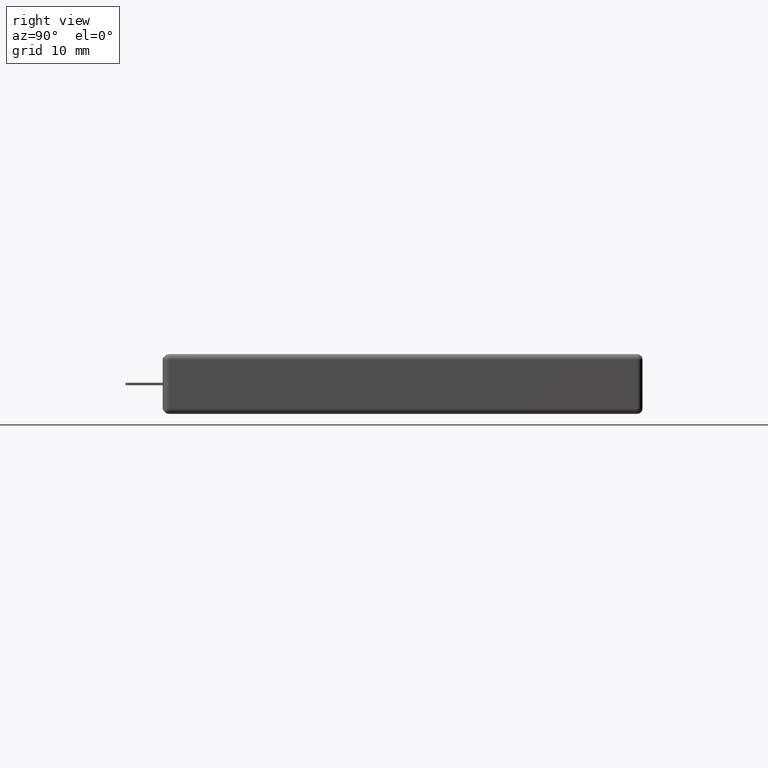
[diagram: clean part render]
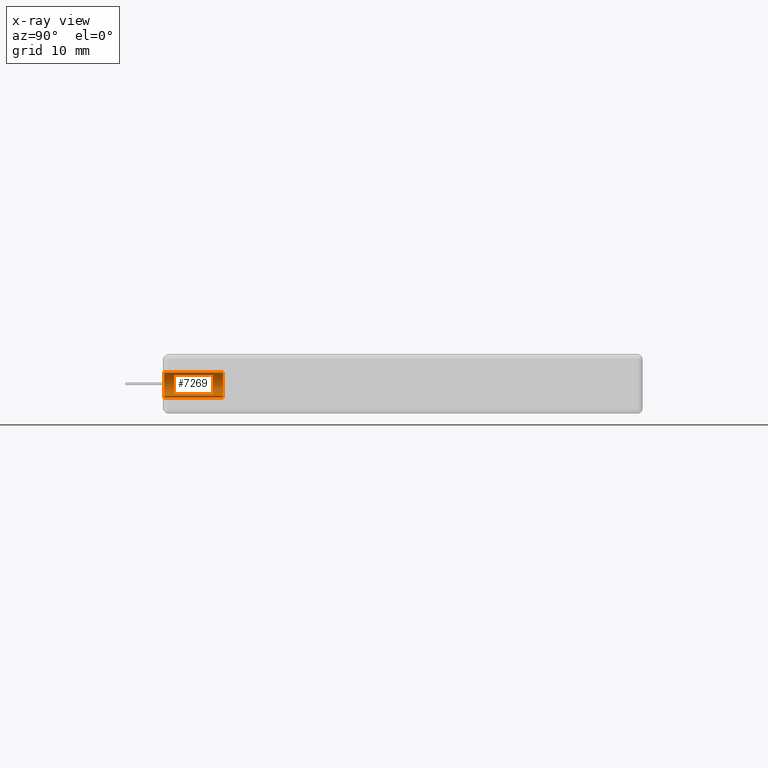
[diagram: x-ray — body ghosted, one internal face saturated and labeled with its STEP entity id]
A machine part, right view, then the same camera in x-ray: the body is ghosted and one INTERNAL B-rep face — a face not visible from any outside direction — is saturated and labeled: STEP entity #7269.
In plain terms, the highlighted cylindrical surface (edge-blend (fillet) strip) has radius 1.9685 mm, axis along (0, 1, -0).
Its self-contained STEP definition (entity closure, byte-faithful):
#441 = CIRCLE ( 'NONE', #16289, 0.07749999999999999944 ) ;
#1135 = AXIS2_PLACEMENT_3D ( 'NONE', #12416, #16456, #10869 ) ;
#1185 = CIRCLE ( 'NONE', #1135, 0.07749999999999999944 ) ;
#1757 = CARTESIAN_POINT ( 'NONE',  ( 0.0000000000000000000, 0.3779999999999998916, 0.0000000000000000000 ) ) ;
#1805 = EDGE_CURVE ( 'NONE', #5229, #2086, #7300, .T. ) ;
#1959 = CARTESIAN_POINT ( 'NONE',  ( 9.491012693391986370E-18, 0.3779999999999998916, 0.07749999999999999944 ) ) ;
#2086 = VERTEX_POINT ( 'NONE', #8276 ) ;
#2292 = AXIS2_PLACEMENT_3D ( 'NONE', #1757, #5824, #10147 ) ;
#2412 = EDGE_CURVE ( 'NONE', #2086, #17471, #1185, .T. ) ;
#3213 = ORIENTED_EDGE ( 'NONE', *, *, #17453, .F. ) ;
#4651 = FACE_OUTER_BOUND ( 'NONE', #11928, .T. ) ;
#5203 = VECTOR ( 'NONE', #15430, 39.37007874015748143 ) ;
#5229 = VERTEX_POINT ( 'NONE', #7483 ) ;
#5366 = CARTESIAN_POINT ( 'NONE',  ( -8.332343311396939121E-33, 0.03999999999999998002, -0.07749999999999999944 ) ) ;
#5824 = DIRECTION ( 'NONE',  ( -4.930380657631323784E-32, -1.000000000000000000, -6.162975822039154730E-32 ) ) ;
#6113 = CARTESIAN_POINT ( 'NONE',  ( -8.332343311396939121E-33, 0.3779999999999998916, -0.07749999999999999944 ) ) ;
#6426 = ORIENTED_EDGE ( 'NONE', *, *, #14010, .F. ) ;
#7266 = ORIENTED_EDGE ( 'NONE', *, *, #2412, .T. ) ;
#7269 = ADVANCED_FACE ( 'NONE', ( #4651 ), #8630, .T. ) ;
#7300 = LINE ( 'NONE', #1959, #5203 ) ;
#7483 = CARTESIAN_POINT ( 'NONE',  ( 9.491012693391978666E-18, 0.3779999999999998916, 0.07749999999999999944 ) ) ;
#7804 = VERTEX_POINT ( 'NONE', #6113 ) ;
#8259 = CARTESIAN_POINT ( 'NONE',  ( 0.0000000000000000000, 0.3779999999999998916, -0.07749999999999999944 ) ) ;
#8276 = CARTESIAN_POINT ( 'NONE',  ( 9.491012693391978666E-18, 0.03999999999999998002, 0.07749999999999999944 ) ) ;
#8630 = CYLINDRICAL_SURFACE ( 'NONE', #2292, 0.07749999999999999944 ) ;
#8872 = ORIENTED_EDGE ( 'NONE', *, *, #1805, .T. ) ;
#9854 = VECTOR ( 'NONE', #13670, 39.37007874015748143 ) ;
#10147 = DIRECTION ( 'NONE',  ( 0.0000000000000000000, 0.0000000000000000000, -1.000000000000000000 ) ) ;
#10869 = DIRECTION ( 'NONE',  ( 0.0000000000000000000, 0.0000000000000000000, 1.000000000000000000 ) ) ;
#11928 = EDGE_LOOP ( 'NONE', ( #3213, #8872, #7266, #6426 ) ) ;
#12152 = CARTESIAN_POINT ( 'NONE',  ( 0.0000000000000000000, 0.3779999999999998916, 0.0000000000000000000 ) ) ;
#12236 = DIRECTION ( 'NONE',  ( 0.0000000000000000000, 0.0000000000000000000, 1.000000000000000000 ) ) ;
#12416 = CARTESIAN_POINT ( 'NONE',  ( 0.0000000000000000000, 0.03999999999999998002, 0.0000000000000000000 ) ) ;
#13670 = DIRECTION ( 'NONE',  ( -4.930380657631323784E-32, -1.000000000000000000, -6.162975822039154730E-32 ) ) ;
#14010 = EDGE_CURVE ( 'NONE', #7804, #17471, #15030, .T. ) ;
#15030 = LINE ( 'NONE', #8259, #9854 ) ;
#15293 = DIRECTION ( 'NONE',  ( 4.930380657631323784E-32, 1.000000000000000000, 6.162975822039154730E-32 ) ) ;
#15430 = DIRECTION ( 'NONE',  ( -4.930380657631323784E-32, -1.000000000000000000, -6.162975822039154730E-32 ) ) ;
#16289 = AXIS2_PLACEMENT_3D ( 'NONE', #12152, #15293, #12236 ) ;
#16456 = DIRECTION ( 'NONE',  ( 4.930380657631323784E-32, 1.000000000000000000, 6.162975822039154730E-32 ) ) ;
#17453 = EDGE_CURVE ( 'NONE', #5229, #7804, #441, .T. ) ;
#17471 = VERTEX_POINT ( 'NONE', #5366 ) ;